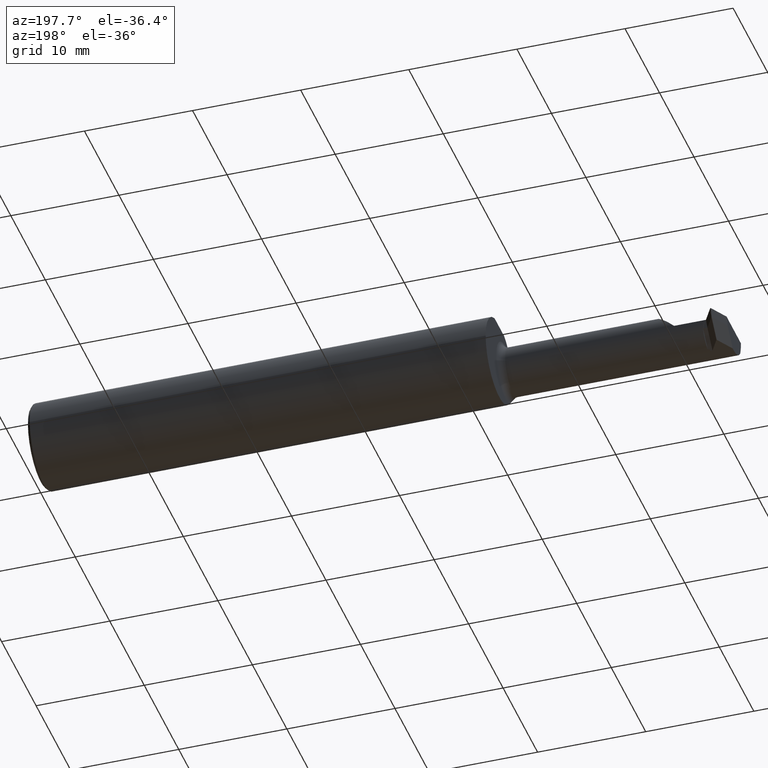
[diagram: clean part render]
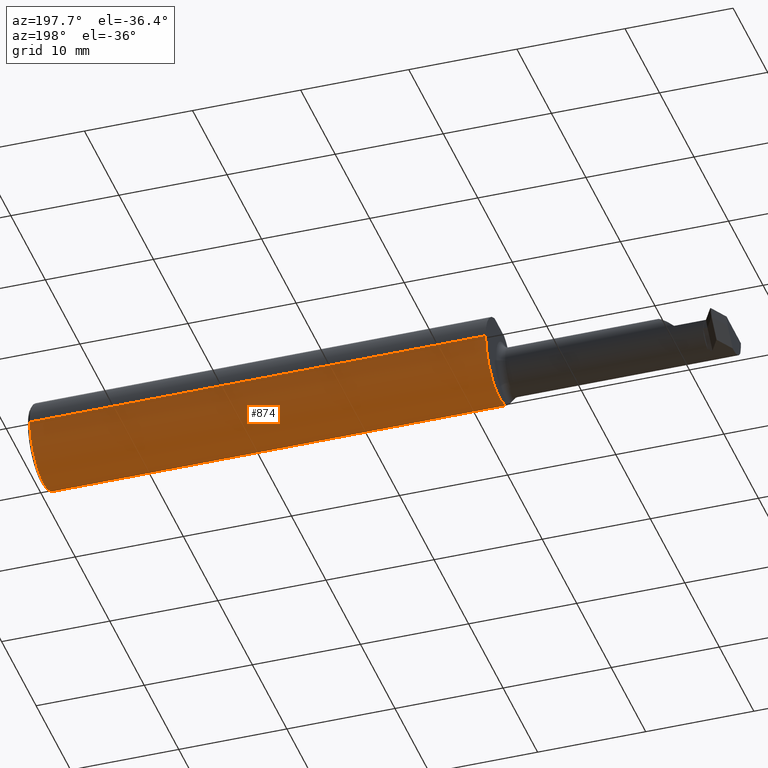
[diagram: same view with one face highlighted and labeled with its STEP entity id]
A machine part, auxiliary view. The second image highlights one B-rep face of the part: STEP entity #874.
In plain terms, the highlighted cylindrical surface (partial cylindrical patch) has radius 3.9649 mm, axis along (1, 0, -0).
Its self-contained STEP definition (entity closure, byte-faithful):
#16 = CARTESIAN_POINT ( 'NONE',  ( -1.669999999999999929, 0.1561000000000000443, 0.000000000000000000 ) ) ;
#37 = CARTESIAN_POINT ( 'NONE',  ( -1.669999999999965068, -0.1183915220908339644, -0.1019192528753024157 ) ) ;
#42 = LINE ( 'NONE', #195, #696 ) ;
#54 = CARTESIAN_POINT ( 'NONE',  ( -2.500000000000000000, -0.1561000000000000720, 1.911673653469018376E-17 ) ) ;
#55 = CARTESIAN_POINT ( 'NONE',  ( -1.693446618368614542, -0.1472695137976343938, -0.05175809410911836467 ) ) ;
#63 = EDGE_CURVE ( 'NONE', #276, #869, #833, .T. ) ;
#72 = VERTEX_POINT ( 'NONE', #348 ) ;
#75 = CARTESIAN_POINT ( 'NONE',  ( -1.669999999999999929, -0.1142537450715595260, -0.1063639588254144952 ) ) ;
#81 = ORIENTED_EDGE ( 'NONE', *, *, #846, .T. ) ;
#98 = VECTOR ( 'NONE', #175, 39.37007874015748143 ) ;
#123 = CARTESIAN_POINT ( 'NONE',  ( -1.691958743194513115, -0.1470959753313503537, -0.05225520737744673849 ) ) ;
#154 = DIRECTION ( 'NONE',  ( 0.000000000000000000, 1.000000000000000000, 0.000000000000000000 ) ) ;
#175 = DIRECTION ( 'NONE',  ( 1.000000000000000000, 1.301231752219315598E-17, 0.000000000000000000 ) ) ;
#187 = DIRECTION ( 'NONE',  ( -1.000000000000000000, -1.224646799147319927E-16, 0.000000000000000000 ) ) ;
#189 = DIRECTION ( 'NONE',  ( 1.000000000000000000, 1.224646799147352961E-16, -0.000000000000000000 ) ) ;
#191 = ORIENTED_EDGE ( 'NONE', *, *, #63, .T. ) ;
#195 = CARTESIAN_POINT ( 'NONE',  ( -2.500000000000000000, -0.1561000000000000720, 8.875653457662609881E-19 ) ) ;
#236 = VERTEX_POINT ( 'NONE', #399 ) ;
#238 = CIRCLE ( 'NONE', #867, 0.1561000000000000165 ) ;
#248 = LINE ( 'NONE', #782, #98 ) ;
#259 = LINE ( 'NONE', #54, #806 ) ;
#260 = CARTESIAN_POINT ( 'NONE',  ( -1.679076445919353011, -0.1408180008929574845, -0.06757000550034257536 ) ) ;
#262 = ORIENTED_EDGE ( 'NONE', *, *, #443, .F. ) ;
#266 = CARTESIAN_POINT ( 'NONE',  ( -1.673462366684950409, -0.1324922991513197701, -0.08274570526434620044 ) ) ;
#276 = VERTEX_POINT ( 'NONE', #370 ) ;
#303 = CARTESIAN_POINT ( 'NONE',  ( -2.500000000000000000, -6.123233995736767268E-17, 0.000000000000000000 ) ) ;
#311 = CARTESIAN_POINT ( 'NONE',  ( -2.500000000000000000, -0.1561000000000000720, 8.875653457662611807E-19 ) ) ;
#315 = EDGE_CURVE ( 'NONE', #461, #448, #573, .T. ) ;
#323 = DIRECTION ( 'NONE',  ( 1.000000000000000000, 1.224646799147352961E-16, -0.000000000000000000 ) ) ;
#328 = CARTESIAN_POINT ( 'NONE',  ( -1.689346208252526127, -0.1465601710296003668, -0.05373964015989951548 ) ) ;
#338 = VECTOR ( 'NONE', #323, 39.37007874015748143 ) ;
#347 = CARTESIAN_POINT ( 'NONE',  ( -1.669999999999999929, 4.041334437186263414E-17, 0.000000000000000000 ) ) ;
#348 = CARTESIAN_POINT ( 'NONE',  ( -0.009999999999999054784, -0.1560999999999997667, 1.911673653469018376E-17 ) ) ;
#360 = DIRECTION ( 'NONE',  ( 1.000000000000000000, 1.224646799147352961E-16, -0.000000000000000000 ) ) ;
#370 = CARTESIAN_POINT ( 'NONE',  ( -1.694999999999999840, -0.1472695137976347546, -0.05175809410911790670 ) ) ;
#383 = CYLINDRICAL_SURFACE ( 'NONE', #805, 0.1561000000000000165 ) ;
#385 = ORIENTED_EDGE ( 'NONE', *, *, #600, .T. ) ;
#387 = DIRECTION ( 'NONE',  ( -1.230512889522860364E-16, 1.000000000000000000, 0.000000000000000000 ) ) ;
#390 = ORIENTED_EDGE ( 'NONE', *, *, #835, .F. ) ;
#399 = CARTESIAN_POINT ( 'NONE',  ( -2.310000000000000053, -0.1561000000000000998, 0.000000000000000000 ) ) ;
#443 = EDGE_CURVE ( 'NONE', #236, #72, #259, .T. ) ;
#448 = VERTEX_POINT ( 'NONE', #596 ) ;
#458 = LINE ( 'NONE', #790, #338 ) ;
#461 = VERTEX_POINT ( 'NONE', #311 ) ;
#464 = DIRECTION ( 'NONE',  ( 0.000000000000000000, 1.000000000000000000, 0.000000000000000000 ) ) ;
#468 = CARTESIAN_POINT ( 'NONE',  ( -1.683431488668993392, -0.1440181054450019593, -0.06027475888573600310 ) ) ;
#487 = EDGE_CURVE ( 'NONE', #764, #525, #458, .T. ) ;
#501 = ORIENTED_EDGE ( 'NONE', *, *, #487, .T. ) ;
#525 = VERTEX_POINT ( 'NONE', #654 ) ;
#528 = CARTESIAN_POINT ( 'NONE',  ( -1.676939195357870727, -0.1382843393702950230, -0.07265330384103628469 ) ) ;
#538 = DIRECTION ( 'NONE',  ( 1.000000000000000000, 1.224646799147352961E-16, -0.000000000000000000 ) ) ;
#541 = ORIENTED_EDGE ( 'NONE', *, *, #735, .T. ) ;
#547 = DIRECTION ( 'NONE',  ( 0.000000000000000000, -1.000000000000000000, 0.000000000000000000 ) ) ;
#573 = CIRCLE ( 'NONE', #648, 0.1561000000000000165 ) ;
#580 = CARTESIAN_POINT ( 'NONE',  ( -1.694999999999999840, -0.1472695137976347546, -0.05175809410911790670 ) ) ;
#587 = AXIS2_PLACEMENT_3D ( 'NONE', #347, #670, #547 ) ;
#593 = CARTESIAN_POINT ( 'NONE',  ( -1.688188662569929610, -0.1461994008685688351, -0.05471926711676251137 ) ) ;
#596 = CARTESIAN_POINT ( 'NONE',  ( -2.500000000000000000, -0.1472695137976348934, -0.05175809410911740016 ) ) ;
#599 = CARTESIAN_POINT ( 'NONE',  ( -2.500000000000000000, -6.123233995736767268E-17, 0.000000000000000000 ) ) ;
#600 = EDGE_CURVE ( 'NONE', #869, #764, #630, .T. ) ;
#630 = CIRCLE ( 'NONE', #587, 0.1561000000000000165 ) ;
#648 = AXIS2_PLACEMENT_3D ( 'NONE', #303, #360, #154 ) ;
#654 = CARTESIAN_POINT ( 'NONE',  ( -0.009999999999999092948, 0.1561000000000002386, 0.000000000000000000 ) ) ;
#667 = EDGE_LOOP ( 'NONE', ( #262, #390, #786, #541, #191, #385, #501, #81 ) ) ;
#668 = CARTESIAN_POINT ( 'NONE',  ( -0.009999999999999073866, 2.437047130303233649E-16, 0.000000000000000000 ) ) ;
#670 = DIRECTION ( 'NONE',  ( 1.000000000000000000, 1.301231752219315598E-17, 0.000000000000000000 ) ) ;
#696 = VECTOR ( 'NONE', #538, 39.37007874015748143 ) ;
#734 = CARTESIAN_POINT ( 'NONE',  ( -1.672196101700324178, -0.1292903952771553844, -0.08767256201919806924 ) ) ;
#735 = EDGE_CURVE ( 'NONE', #448, #276, #248, .T. ) ;
#746 = FACE_OUTER_BOUND ( 'NONE', #667, .T. ) ;
#764 = VERTEX_POINT ( 'NONE', #16 ) ;
#782 = CARTESIAN_POINT ( 'NONE',  ( -2.058054491924310891, -0.1472695137976346713, -0.05175809410911783731 ) ) ;
#786 = ORIENTED_EDGE ( 'NONE', *, *, #315, .T. ) ;
#790 = CARTESIAN_POINT ( 'NONE',  ( -2.500000000000000000, 0.1560999999999999333, 0.000000000000000000 ) ) ;
#802 = CARTESIAN_POINT ( 'NONE',  ( -1.670462611252523599, -0.1222547939313150256, -0.09724325067964828540 ) ) ;
#804 = DIRECTION ( 'NONE',  ( 1.000000000000000000, 1.224646799147352961E-16, -0.000000000000000000 ) ) ;
#805 = AXIS2_PLACEMENT_3D ( 'NONE', #599, #804, #464 ) ;
#806 = VECTOR ( 'NONE', #189, 39.37007874015748143 ) ;
#833 = B_SPLINE_CURVE_WITH_KNOTS ( 'NONE', 3,
 ( #580, #55, #123, #328, #593, #859, #468, #260, #528, #266, #734, #802, #37, #75 ),
 .UNSPECIFIED., .F., .F.,
 ( 4, 2, 2, 2, 2, 2, 4 ),
 ( 1.961733332188614115E-07, 0.0001163117065468485665, 0.0002324272397604782651, 0.0004646583061877518654, 0.0009291204390422881697, 0.001393582571896824582, 0.001858044704751360887 ),
 .UNSPECIFIED. ) ;
#835 = EDGE_CURVE ( 'NONE', #461, #236, #42, .T. ) ;
#846 = EDGE_CURVE ( 'NONE', #525, #72, #238, .T. ) ;
#859 = CARTESIAN_POINT ( 'NONE',  ( -1.685093217728559134, -0.1449997488157368786, -0.05785581108117095195 ) ) ;
#867 = AXIS2_PLACEMENT_3D ( 'NONE', #668, #187, #387 ) ;
#869 = VERTEX_POINT ( 'NONE', #870 ) ;
#870 = CARTESIAN_POINT ( 'NONE',  ( -1.669999999999999929, -0.1142537450715595260, -0.1063639588254144952 ) ) ;
#874 = ADVANCED_FACE ( 'NONE', ( #746 ), #383, .T. ) ;